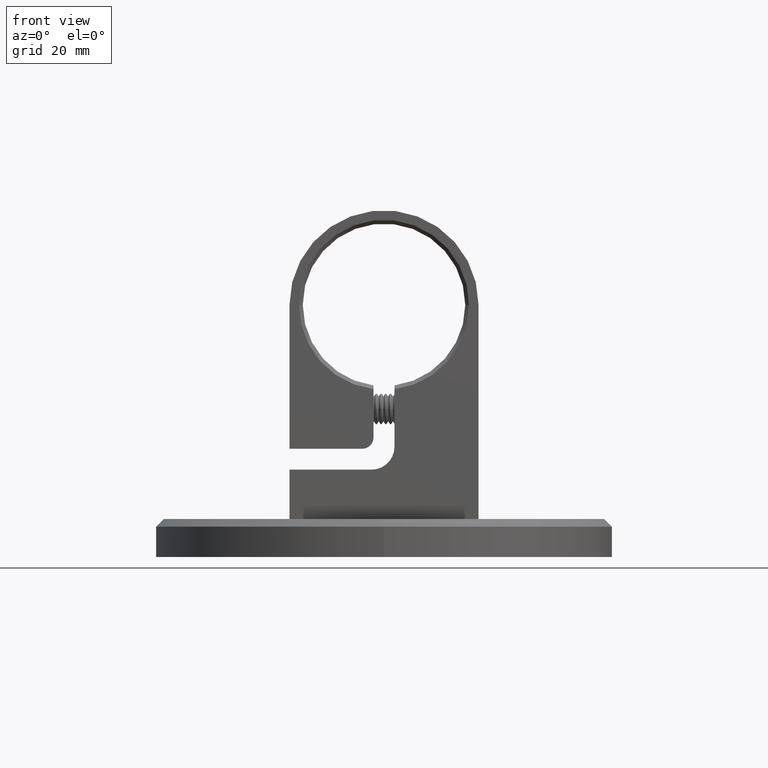
[diagram: clean part render]
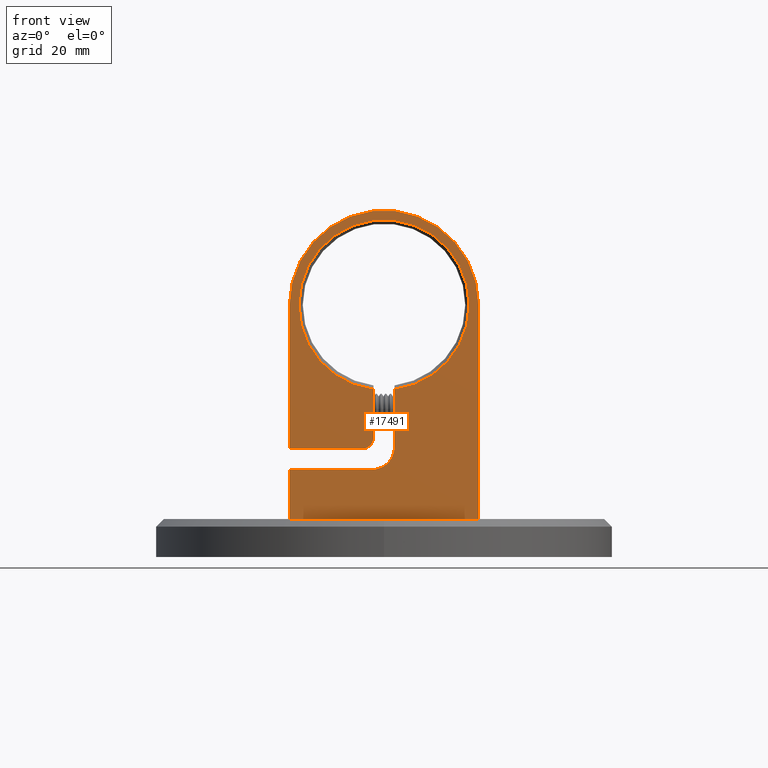
[diagram: same view with one face highlighted and labeled with its STEP entity id]
A machine part, front view. The second image highlights one B-rep face of the part: STEP entity #17491.
In plain terms, the highlighted planar face has unit normal (-0, -1, 0).
Its self-contained STEP definition (entity closure, byte-faithful):
#116 = ORIENTED_EDGE ( 'NONE', *, *, #15371, .F. ) ;
#736 = CIRCLE ( 'NONE', #13452, 22.39999999999999900 ) ;
#770 = CARTESIAN_POINT ( 'NONE',  ( 8.000000000000000000, 0.0000000000000000000, -24.89999999999998400 ) ) ;
#1787 = CARTESIAN_POINT ( 'NONE',  ( 8.000000000000000000, 13.00000000000000000, 3.249999999999996400 ) ) ;
#1866 = DIRECTION ( 'NONE',  ( 0.0000000000000000000, 0.0000000000000000000, -1.000000000000000000 ) ) ;
#1906 = CARTESIAN_POINT ( 'NONE',  ( 8.000000000000000000, 56.39999999999998400, 24.89999999999999100 ) ) ;
#2023 = DIRECTION ( 'NONE',  ( 0.0000000000000000000, -1.000000000000000000, -2.536622075190498700E-016 ) ) ;
#2352 = VERTEX_POINT ( 'NONE', #11790 ) ;
#2659 = VERTEX_POINT ( 'NONE', #13730 ) ;
#2696 = CARTESIAN_POINT ( 'NONE',  ( 8.000000000000000000, 56.39999999999998400, 6.162975822039154700E-030 ) ) ;
#2904 = VERTEX_POINT ( 'NONE', #1787 ) ;
#2932 = VECTOR ( 'NONE', #4269, 1000.000000000000000 ) ;
#2988 = LINE ( 'NONE', #15293, #9042 ) ;
#3340 = EDGE_CURVE ( 'NONE', #2352, #2904, #14842, .T. ) ;
#3404 = VERTEX_POINT ( 'NONE', #22590 ) ;
#3487 = LINE ( 'NONE', #6306, #12802 ) ;
#3997 = VECTOR ( 'NONE', #20020, 1000.000000000000000 ) ;
#4269 = DIRECTION ( 'NONE',  ( 0.0000000000000000000, 1.000000000000000000, -1.230300337572202900E-016 ) ) ;
#4613 = EDGE_CURVE ( 'NONE', #3404, #2659, #19517, .T. ) ;
#4910 = AXIS2_PLACEMENT_3D ( 'NONE', #17486, #19313, #6894 ) ;
#4985 = AXIS2_PLACEMENT_3D ( 'NONE', #5605, #14444, #11124 ) ;
#5092 = CIRCLE ( 'NONE', #10977, 5.999999999999998200 ) ;
#5110 = LINE ( 'NONE', #15854, #20998 ) ;
#5148 = EDGE_CURVE ( 'NONE', #15303, #11617, #736, .T. ) ;
#5156 = DIRECTION ( 'NONE',  ( 0.0000000000000000000, 0.0000000000000000000, -1.000000000000000000 ) ) ;
#5169 = CARTESIAN_POINT ( 'NONE',  ( 8.000000000000000000, 56.39999999999998400, 6.162975822039154700E-030 ) ) ;
#5345 = ORIENTED_EDGE ( 'NONE', *, *, #6019, .T. ) ;
#5537 = CIRCLE ( 'NONE', #4985, 22.39999999999999900 ) ;
#5575 = PLANE ( 'NONE',  #6694 ) ;
#5605 = CARTESIAN_POINT ( 'NONE',  ( 8.000000000000000000, 56.39999999999998400, 6.162975822039154700E-030 ) ) ;
#5635 = VECTOR ( 'NONE', #19612, 1000.000000000000000 ) ;
#5710 = EDGE_CURVE ( 'NONE', #18694, #6545, #7019, .T. ) ;
#6003 = CARTESIAN_POINT ( 'NONE',  ( 8.000000000000000000, 56.39999999999998400, 6.162975822039154700E-030 ) ) ;
#6019 = EDGE_CURVE ( 'NONE', #2352, #22432, #13880, .T. ) ;
#6177 = ORIENTED_EDGE ( 'NONE', *, *, #5710, .F. ) ;
#6207 = EDGE_CURVE ( 'NONE', #2904, #14998, #5092, .T. ) ;
#6232 = LINE ( 'NONE', #770, #2932 ) ;
#6306 = CARTESIAN_POINT ( 'NONE',  ( 8.000000000000000000, 56.39999999999998400, 24.89999999999999100 ) ) ;
#6422 = CARTESIAN_POINT ( 'NONE',  ( 8.000000000000000000, 13.00000000000000000, 24.89999999999999100 ) ) ;
#6545 = VERTEX_POINT ( 'NONE', #19971 ) ;
#6694 = AXIS2_PLACEMENT_3D ( 'NONE', #21291, #21212, #10728 ) ;
#6894 = DIRECTION ( 'NONE',  ( 0.0000000000000000000, 0.0000000000000000000, 1.000000000000000000 ) ) ;
#7019 = LINE ( 'NONE', #9673, #3997 ) ;
#7041 = VERTEX_POINT ( 'NONE', #11500 ) ;
#7872 = AXIS2_PLACEMENT_3D ( 'NONE', #2696, #14980, #7911 ) ;
#7911 = DIRECTION ( 'NONE',  ( 0.0000000000000000000, 0.0000000000000000000, -1.000000000000000000 ) ) ;
#8118 = ORIENTED_EDGE ( 'NONE', *, *, #9055, .T. ) ;
#8346 = EDGE_LOOP ( 'NONE', ( #12334, #21245, #8118, #8896, #116, #13775, #19380, #5345, #8484, #16995, #20113, #16318, #6177, #11131 ) ) ;
#8484 = ORIENTED_EDGE ( 'NONE', *, *, #16917, .T. ) ;
#8896 = ORIENTED_EDGE ( 'NONE', *, *, #17989, .T. ) ;
#9042 = VECTOR ( 'NONE', #5156, 1000.000000000000000 ) ;
#9055 = EDGE_CURVE ( 'NONE', #11617, #13552, #5537, .T. ) ;
#9554 = DIRECTION ( 'NONE',  ( -1.000000000000000000, -0.0000000000000000000, -0.0000000000000000000 ) ) ;
#9670 = DIRECTION ( 'NONE',  ( 0.0000000000000000000, 1.000000000000000000, -5.361554749610531100E-017 ) ) ;
#9673 = CARTESIAN_POINT ( 'NONE',  ( 7.999999999999992900, 18.50000000000000400, 5.749999999999994700 ) ) ;
#10728 = DIRECTION ( 'NONE',  ( 0.0000000000000000000, 0.0000000000000000000, -1.000000000000000000 ) ) ;
#10977 = AXIS2_PLACEMENT_3D ( 'NONE', #11404, #14870, #16643 ) ;
#11124 = DIRECTION ( 'NONE',  ( 0.0000000000000000000, 0.0000000000000000000, -1.000000000000000000 ) ) ;
#11131 = ORIENTED_EDGE ( 'NONE', *, *, #17339, .F. ) ;
#11404 = CARTESIAN_POINT ( 'NONE',  ( 8.000000000000000000, 19.00000000000000400, 3.249999999999996000 ) ) ;
#11500 = CARTESIAN_POINT ( 'NONE',  ( 8.000000000000000000, 34.16944670054296300, -2.750000000000001800 ) ) ;
#11617 = VERTEX_POINT ( 'NONE', #12568 ) ;
#11625 = CARTESIAN_POINT ( 'NONE',  ( 8.000000000000000000, 0.0000000000000000000, -24.89999999999998400 ) ) ;
#11790 = CARTESIAN_POINT ( 'NONE',  ( 8.000000000000000000, 13.00000000000000000, 24.89999999999999100 ) ) ;
#11820 = VECTOR ( 'NONE', #20441, 1000.000000000000000 ) ;
#12334 = ORIENTED_EDGE ( 'NONE', *, *, #21089, .F. ) ;
#12397 = VECTOR ( 'NONE', #9670, 1000.000000000000000 ) ;
#12568 = CARTESIAN_POINT ( 'NONE',  ( 8.000000000000000000, 56.39999999999998400, 22.40000000000000200 ) ) ;
#12759 = VERTEX_POINT ( 'NONE', #13822 ) ;
#12802 = VECTOR ( 'NONE', #20259, 1000.000000000000000 ) ;
#12932 = LINE ( 'NONE', #14965, #12397 ) ;
#13452 = AXIS2_PLACEMENT_3D ( 'NONE', #6003, #9554, #21936 ) ;
#13552 = VERTEX_POINT ( 'NONE', #20062 ) ;
#13730 = CARTESIAN_POINT ( 'NONE',  ( 8.000000000000000000, 56.39999999999998400, 24.89999999999999100 ) ) ;
#13775 = ORIENTED_EDGE ( 'NONE', *, *, #6207, .F. ) ;
#13822 = CARTESIAN_POINT ( 'NONE',  ( 8.000000000000000000, 21.50000000000000400, 2.749999999999995600 ) ) ;
#13880 = LINE ( 'NONE', #1906, #5635 ) ;
#13893 = EDGE_CURVE ( 'NONE', #2659, #6545, #3487, .T. ) ;
#14444 = DIRECTION ( 'NONE',  ( -1.000000000000000000, -0.0000000000000000000, -0.0000000000000000000 ) ) ;
#14800 = CIRCLE ( 'NONE', #4910, 2.999999999999999100 ) ;
#14842 = LINE ( 'NONE', #6422, #11820 ) ;
#14870 = DIRECTION ( 'NONE',  ( 1.000000000000000000, 0.0000000000000000000, 0.0000000000000000000 ) ) ;
#14965 = CARTESIAN_POINT ( 'NONE',  ( 8.000000000000000000, 19.00000000000000400, -2.750000000000000900 ) ) ;
#14980 = DIRECTION ( 'NONE',  ( -1.000000000000000000, -0.0000000000000000000, -0.0000000000000000000 ) ) ;
#14998 = VERTEX_POINT ( 'NONE', #22389 ) ;
#15293 = CARTESIAN_POINT ( 'NONE',  ( 8.000000000000000000, 0.0000000000000000000, 24.89999999999998400 ) ) ;
#15303 = VERTEX_POINT ( 'NONE', #17817 ) ;
#15371 = EDGE_CURVE ( 'NONE', #14998, #7041, #12932, .T. ) ;
#15535 = AXIS2_PLACEMENT_3D ( 'NONE', #5169, #20949, #1866 ) ;
#15854 = CARTESIAN_POINT ( 'NONE',  ( 8.000000000000000000, 35.17742946766344400, 2.749999999999999100 ) ) ;
#16186 = CARTESIAN_POINT ( 'NONE',  ( 7.999999999999992900, 18.50000000000000400, 5.749999999999993800 ) ) ;
#16318 = ORIENTED_EDGE ( 'NONE', *, *, #13893, .T. ) ;
#16442 = FACE_OUTER_BOUND ( 'NONE', #8346, .T. ) ;
#16643 = DIRECTION ( 'NONE',  ( 0.0000000000000000000, 0.0000000000000000000, -1.000000000000000000 ) ) ;
#16699 = CIRCLE ( 'NONE', #7872, 22.39999999999999900 ) ;
#16900 = CARTESIAN_POINT ( 'NONE',  ( 8.000000000000000000, 0.0000000000000000000, 24.89999999999998400 ) ) ;
#16917 = EDGE_CURVE ( 'NONE', #22432, #21688, #2988, .T. ) ;
#16995 = ORIENTED_EDGE ( 'NONE', *, *, #18417, .T. ) ;
#17339 = EDGE_CURVE ( 'NONE', #12759, #18694, #14800, .T. ) ;
#17486 = CARTESIAN_POINT ( 'NONE',  ( 7.999999999999992900, 21.50000000000000400, 5.749999999999994700 ) ) ;
#17491 = ADVANCED_FACE ( 'NONE', ( #16442 ), #5575, .T. ) ;
#17817 = CARTESIAN_POINT ( 'NONE',  ( 8.000000000000000000, 34.16944670054296300, 2.749999999999998700 ) ) ;
#17989 = EDGE_CURVE ( 'NONE', #13552, #7041, #16699, .T. ) ;
#18417 = EDGE_CURVE ( 'NONE', #21688, #3404, #6232, .T. ) ;
#18694 = VERTEX_POINT ( 'NONE', #16186 ) ;
#19313 = DIRECTION ( 'NONE',  ( -1.000000000000000000, 0.0000000000000000000, 0.0000000000000000000 ) ) ;
#19380 = ORIENTED_EDGE ( 'NONE', *, *, #3340, .F. ) ;
#19517 = CIRCLE ( 'NONE', #15535, 24.89999999999999500 ) ;
#19612 = DIRECTION ( 'NONE',  ( 0.0000000000000000000, -1.000000000000000000, -1.230300337572202900E-016 ) ) ;
#19971 = CARTESIAN_POINT ( 'NONE',  ( 8.000000000000000000, 18.50000000000000400, 24.89999999999998800 ) ) ;
#20020 = DIRECTION ( 'NONE',  ( 0.0000000000000000000, -1.811721645928780300E-016, 1.000000000000000000 ) ) ;
#20062 = CARTESIAN_POINT ( 'NONE',  ( 8.000000000000000000, 56.39999999999998400, -22.40000000000000200 ) ) ;
#20113 = ORIENTED_EDGE ( 'NONE', *, *, #4613, .T. ) ;
#20259 = DIRECTION ( 'NONE',  ( 0.0000000000000000000, -1.000000000000000000, -1.230300337572202900E-016 ) ) ;
#20441 = DIRECTION ( 'NONE',  ( 0.0000000000000000000, -1.602515913142546900E-016, -1.000000000000000000 ) ) ;
#20949 = DIRECTION ( 'NONE',  ( 1.000000000000000000, 0.0000000000000000000, 0.0000000000000000000 ) ) ;
#20998 = VECTOR ( 'NONE', #2023, 1000.000000000000000 ) ;
#21089 = EDGE_CURVE ( 'NONE', #15303, #12759, #5110, .T. ) ;
#21212 = DIRECTION ( 'NONE',  ( 1.000000000000000000, 0.0000000000000000000, 0.0000000000000000000 ) ) ;
#21245 = ORIENTED_EDGE ( 'NONE', *, *, #5148, .T. ) ;
#21291 = CARTESIAN_POINT ( 'NONE',  ( 8.000000000000000000, 56.39999999999998400, 6.162975822039154700E-030 ) ) ;
#21688 = VERTEX_POINT ( 'NONE', #11625 ) ;
#21936 = DIRECTION ( 'NONE',  ( 0.0000000000000000000, 9.293161478447182000E-016, -1.000000000000000000 ) ) ;
#22389 = CARTESIAN_POINT ( 'NONE',  ( 8.000000000000000000, 19.00000000000000400, -2.750000000000001800 ) ) ;
#22432 = VERTEX_POINT ( 'NONE', #16900 ) ;
#22590 = CARTESIAN_POINT ( 'NONE',  ( 8.000000000000000000, 56.39999999999998400, -24.89999999999999100 ) ) ;